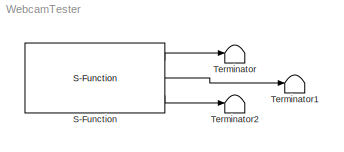
MODEL WebcamTester
KIND model
BLOCK [S-Function] S-Function
  EnableBusSupport = off
  FunctionName = WebcamTest
  Ports = [0, 3]
  SID = 2
BLOCK [Terminator] Terminator
  SID = 5
BLOCK [Terminator] Terminator1
  SID = 6
BLOCK [Terminator] Terminator2
  SID = 7
LINE S-Function:1 -> Terminator:1
LINE S-Function:2 -> Terminator1:1
LINE S-Function:3 -> Terminator2:1
